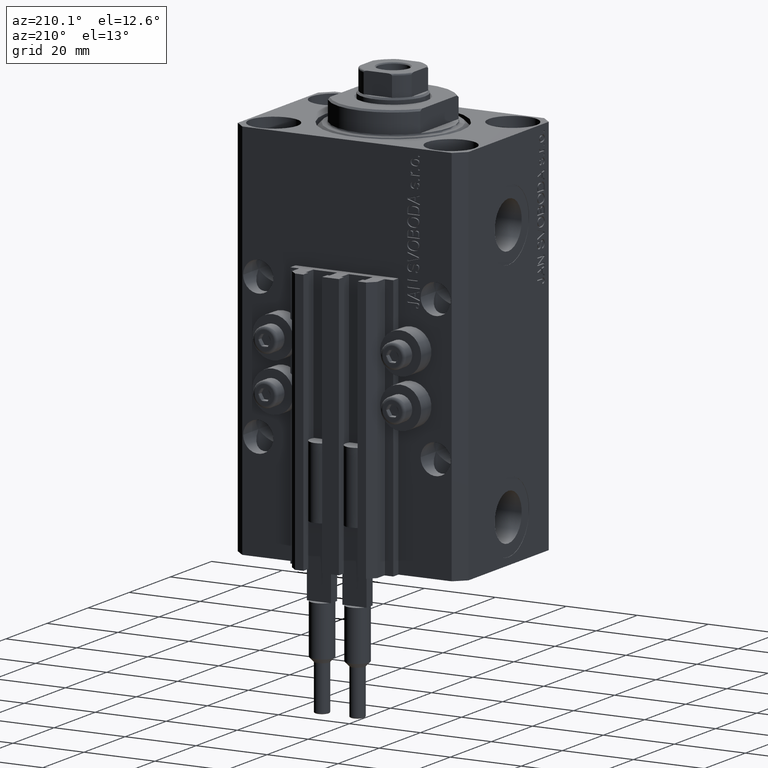
[diagram: clean part render]
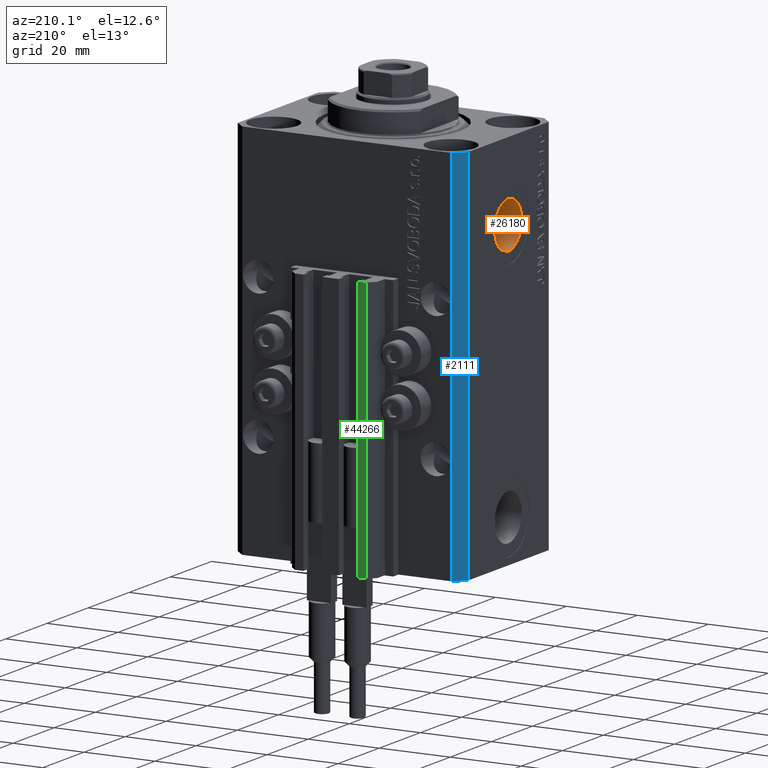
[diagram: same view with three faces highlighted in distinct colors, each labeled with its STEP entity id]
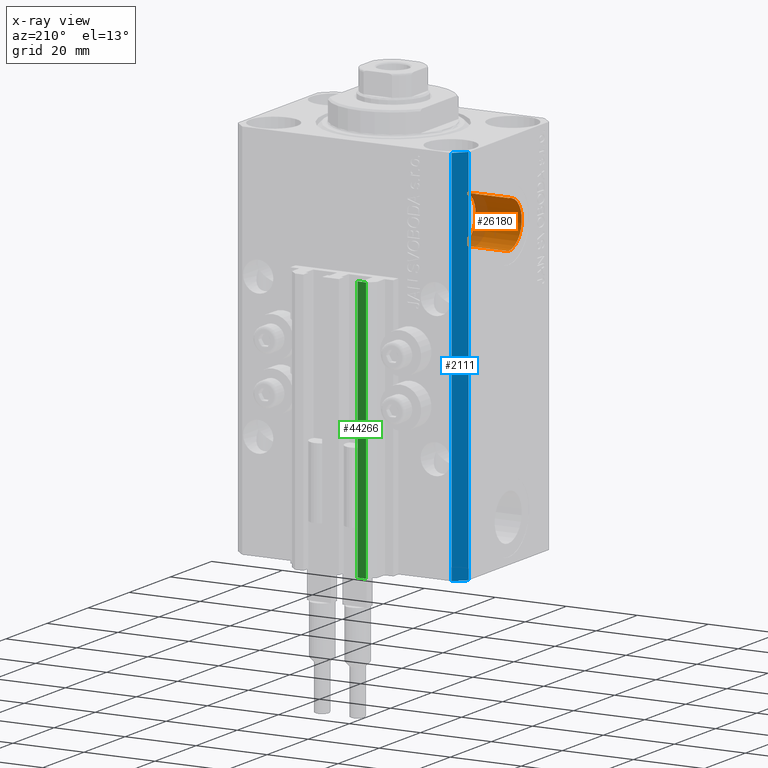
[diagram: x-ray of the same camera — body ghosted, the three highlighted faces saturated]
A machine part, auxiliary view with three faces highlighted in distinct colors.
The next image is the same camera in x-ray (body ghosted, the three faces saturated) — at least one of them is partly hidden behind the body in this view.
Their STEP definitions:

[orange] entity #26180 — the highlighted cylindrical surface (edge-blend (fillet) strip) has radius 6.58 mm, axis along (-1, -0, -0).
#1495 = EDGE_LOOP ( 'NONE', ( #39874, #26310, #27891, #34044 ) ) ;
#2220 = DIRECTION ( 'NONE',  ( 0.000000000000000000, 0.000000000000000000, 1.000000000000000000 ) ) ;
#7375 = DIRECTION ( 'NONE',  ( 0.000000000000000000, 0.000000000000000000, 1.000000000000000000 ) ) ;
#8674 = CARTESIAN_POINT ( 'NONE',  ( -19.39999999999650271, 0.000000000000000000, -15.41999999999999993 ) ) ;
#9579 = DIRECTION ( 'NONE',  ( -1.000000000000000000, -0.000000000000000000, -0.000000000000000000 ) ) ;
#10034 = VECTOR ( 'NONE', #42048, 1000.000000000000000 ) ;
#10871 = CIRCLE ( 'NONE', #39073, 6.579999999999999183 ) ;
#11341 = DIRECTION ( 'NONE',  ( -1.000000000000000000, 0.000000000000000000, 0.000000000000000000 ) ) ;
#12342 = LINE ( 'NONE', #8674, #10034 ) ;
#13233 = FACE_OUTER_BOUND ( 'NONE', #1495, .T. ) ;
#14479 = CARTESIAN_POINT ( 'NONE',  ( -32.39999999999650271, 0.000000000000000000, -22.00000000000000000 ) ) ;
#15487 = EDGE_CURVE ( 'NONE', #25530, #35539, #27233, .T. ) ;
#18104 = CARTESIAN_POINT ( 'NONE',  ( -19.39999999999650271, 0.000000000000000000, -15.41999999999999993 ) ) ;
#18406 = DIRECTION ( 'NONE',  ( -1.000000000000000000, 0.000000000000000000, 0.000000000000000000 ) ) ;
#18461 = CARTESIAN_POINT ( 'NONE',  ( -19.39999999999650271, 0.000000000000000000, -22.00000000000000000 ) ) ;
#19568 = VERTEX_POINT ( 'NONE', #21127 ) ;
#20245 = VECTOR ( 'NONE', #23144, 1000.000000000000000 ) ;
#21127 = CARTESIAN_POINT ( 'NONE',  ( -32.39999999999650271, 8.058175938389579572E-16, -28.57999999999999829 ) ) ;
#23144 = DIRECTION ( 'NONE',  ( -1.000000000000000000, -0.000000000000000000, -0.000000000000000000 ) ) ;
#24758 = CYLINDRICAL_SURFACE ( 'NONE', #30598, 6.579999999999999183 ) ;
#25530 = VERTEX_POINT ( 'NONE', #39141 ) ;
#26180 = ADVANCED_FACE ( 'NONE', ( #13233 ), #24758, .F. ) ;
#26310 = ORIENTED_EDGE ( 'NONE', *, *, #28493, .T. ) ;
#27233 = CIRCLE ( 'NONE', #41362, 6.579999999999999183 ) ;
#27891 = ORIENTED_EDGE ( 'NONE', *, *, #31287, .T. ) ;
#28493 = EDGE_CURVE ( 'NONE', #25530, #19568, #38374, .T. ) ;
#30598 = AXIS2_PLACEMENT_3D ( 'NONE', #43199, #9579, #2220 ) ;
#30744 = EDGE_CURVE ( 'NONE', #35539, #44135, #12342, .T. ) ;
#31287 = EDGE_CURVE ( 'NONE', #19568, #44135, #10871, .T. ) ;
#34044 = ORIENTED_EDGE ( 'NONE', *, *, #30744, .F. ) ;
#34714 = CARTESIAN_POINT ( 'NONE',  ( -32.39999999999650271, 0.000000000000000000, -15.41999999999999993 ) ) ;
#35539 = VERTEX_POINT ( 'NONE', #18104 ) ;
#38374 = LINE ( 'NONE', #39112, #20245 ) ;
#39073 = AXIS2_PLACEMENT_3D ( 'NONE', #14479, #18406, #7375 ) ;
#39112 = CARTESIAN_POINT ( 'NONE',  ( -19.39999999999650271, 8.058175938389580558E-16, -28.57999999999999829 ) ) ;
#39141 = CARTESIAN_POINT ( 'NONE',  ( -19.39999999999650271, 8.058175938389579572E-16, -28.57999999999999829 ) ) ;
#39874 = ORIENTED_EDGE ( 'NONE', *, *, #15487, .F. ) ;
#41362 = AXIS2_PLACEMENT_3D ( 'NONE', #18461, #11341, #44973 ) ;
#42048 = DIRECTION ( 'NONE',  ( -1.000000000000000000, -0.000000000000000000, -0.000000000000000000 ) ) ;
#43199 = CARTESIAN_POINT ( 'NONE',  ( -19.39999999999650271, 0.000000000000000000, -22.00000000000000000 ) ) ;
#44135 = VERTEX_POINT ( 'NONE', #34714 ) ;
#44973 = DIRECTION ( 'NONE',  ( 0.000000000000000000, 0.000000000000000000, 1.000000000000000000 ) ) ;

[blue] entity #2111 — the highlighted planar face has unit normal (-0.7071, 0.7071, 0).
#1824 = CARTESIAN_POINT ( 'NONE',  ( -29.49999999999650413, 22.49999999999949907, -107.0000000000000000 ) ) ;
#2111 = ADVANCED_FACE ( 'NONE', ( #40923 ), #7537, .T. ) ;
#3444 = AXIS2_PLACEMENT_3D ( 'NONE', #30087, #30561, #18336 ) ;
#4803 = ORIENTED_EDGE ( 'NONE', *, *, #9921, .F. ) ;
#4901 = ORIENTED_EDGE ( 'NONE', *, *, #12499, .T. ) ;
#6503 = LINE ( 'NONE', #14095, #40499 ) ;
#7537 = PLANE ( 'NONE',  #3444 ) ;
#9921 = EDGE_CURVE ( 'NONE', #42079, #21372, #6503, .T. ) ;
#9942 = DIRECTION ( 'NONE',  ( 0.000000000000000000, 0.000000000000000000, 1.000000000000000000 ) ) ;
#10018 = DIRECTION ( 'NONE',  ( -0.7071067811865474617, -0.7071067811865474617, 0.000000000000000000 ) ) ;
#10743 = DIRECTION ( 'NONE',  ( -0.7071067811865474617, -0.7071067811865474617, 0.000000000000000000 ) ) ;
#12499 = EDGE_CURVE ( 'NONE', #42079, #40804, #15365, .T. ) ;
#14095 = CARTESIAN_POINT ( 'NONE',  ( -29.49999999999650413, 22.49999999999949907, -107.0000000000000000 ) ) ;
#15365 = LINE ( 'NONE', #44376, #24001 ) ;
#17917 = VECTOR ( 'NONE', #26107, 1000.000000000000000 ) ;
#18336 = DIRECTION ( 'NONE',  ( -0.7071067811865474617, -0.7071067811865474617, 0.000000000000000000 ) ) ;
#21372 = VERTEX_POINT ( 'NONE', #31526 ) ;
#22258 = LINE ( 'NONE', #33550, #40904 ) ;
#23436 = CARTESIAN_POINT ( 'NONE',  ( -32.49999999999650413, 19.49999999999949907, -107.0000000000000000 ) ) ;
#24001 = VECTOR ( 'NONE', #10743, 1000.000000000000114 ) ;
#26107 = DIRECTION ( 'NONE',  ( 0.000000000000000000, 0.000000000000000000, 1.000000000000000000 ) ) ;
#27330 = EDGE_LOOP ( 'NONE', ( #34067, #4803, #4901, #30315 ) ) ;
#28302 = EDGE_CURVE ( 'NONE', #40804, #33409, #28338, .T. ) ;
#28338 = LINE ( 'NONE', #43344, #17917 ) ;
#30087 = CARTESIAN_POINT ( 'NONE',  ( -29.49999999999650413, 22.49999999999949907, -107.0000000000000000 ) ) ;
#30315 = ORIENTED_EDGE ( 'NONE', *, *, #28302, .T. ) ;
#30561 = DIRECTION ( 'NONE',  ( -0.7071067811865475727, 0.7071067811865475727, 0.000000000000000000 ) ) ;
#30892 = CARTESIAN_POINT ( 'NONE',  ( -32.49999999999650413, 19.49999999999949907, 0.000000000000000000 ) ) ;
#31526 = CARTESIAN_POINT ( 'NONE',  ( -29.49999999999650413, 22.49999999999949907, 0.000000000000000000 ) ) ;
#33409 = VERTEX_POINT ( 'NONE', #30892 ) ;
#33550 = CARTESIAN_POINT ( 'NONE',  ( -29.49999999999650413, 22.49999999999949907, 0.000000000000000000 ) ) ;
#34067 = ORIENTED_EDGE ( 'NONE', *, *, #39293, .F. ) ;
#39293 = EDGE_CURVE ( 'NONE', #21372, #33409, #22258, .T. ) ;
#40499 = VECTOR ( 'NONE', #9942, 1000.000000000000000 ) ;
#40804 = VERTEX_POINT ( 'NONE', #23436 ) ;
#40904 = VECTOR ( 'NONE', #10018, 1000.000000000000114 ) ;
#40923 = FACE_OUTER_BOUND ( 'NONE', #27330, .T. ) ;
#42079 = VERTEX_POINT ( 'NONE', #1824 ) ;
#43344 = CARTESIAN_POINT ( 'NONE',  ( -32.49999999999650413, 19.49999999999949907, -107.0000000000000000 ) ) ;
#44376 = CARTESIAN_POINT ( 'NONE',  ( -29.49999999999650413, 22.49999999999949907, -107.0000000000000000 ) ) ;

[green] entity #44266 — the highlighted planar face has unit normal (0, 1, 0).
#1566 = ORIENTED_EDGE ( 'NONE', *, *, #25781, .T. ) ;
#2090 = DIRECTION ( 'NONE',  ( 1.476360405086644852E-15, 1.000000000000000000, -0.000000000000000000 ) ) ;
#2336 = FACE_OUTER_BOUND ( 'NONE', #9740, .T. ) ;
#3840 = VERTEX_POINT ( 'NONE', #27185 ) ;
#4246 = LINE ( 'NONE', #8161, #12607 ) ;
#5684 = DIRECTION ( 'NONE',  ( 0.000000000000000000, 0.000000000000000000, 1.000000000000000000 ) ) ;
#6489 = PLANE ( 'NONE',  #21328 ) ;
#8094 = VECTOR ( 'NONE', #5684, 1000.000000000000000 ) ;
#8161 = CARTESIAN_POINT ( 'NONE',  ( -7.650000000000000355, 30.49999999999948486, -107.0000000000000000 ) ) ;
#9216 = ORIENTED_EDGE ( 'NONE', *, *, #13889, .F. ) ;
#9740 = EDGE_LOOP ( 'NONE', ( #9216, #38974, #1566, #25154 ) ) ;
#11915 = DIRECTION ( 'NONE',  ( -1.000000000000000000, 1.476360405086644852E-15, 0.000000000000000000 ) ) ;
#12607 = VECTOR ( 'NONE', #46210, 1000.000000000000000 ) ;
#12868 = DIRECTION ( 'NONE',  ( -1.000000000000000000, 1.476360405086644852E-15, 0.000000000000000000 ) ) ;
#13245 = CARTESIAN_POINT ( 'NONE',  ( -10.00000000000000000, 30.49999999999948841, -33.00000000000000000 ) ) ;
#13889 = EDGE_CURVE ( 'NONE', #3840, #45543, #30564, .T. ) ;
#14566 = CARTESIAN_POINT ( 'NONE',  ( -10.00000000000000000, 30.49999999999948841, -107.0000000000000000 ) ) ;
#14662 = LINE ( 'NONE', #41407, #47606 ) ;
#15007 = EDGE_CURVE ( 'NONE', #25669, #45543, #14662, .T. ) ;
#21328 = AXIS2_PLACEMENT_3D ( 'NONE', #28309, #2090, #12868 ) ;
#22287 = VERTEX_POINT ( 'NONE', #28570 ) ;
#22956 = CARTESIAN_POINT ( 'NONE',  ( -7.650000000000000355, 30.49999999999948486, -33.00000000000000000 ) ) ;
#24027 = VECTOR ( 'NONE', #11915, 1000.000000000000000 ) ;
#24310 = LINE ( 'NONE', #39309, #8094 ) ;
#25154 = ORIENTED_EDGE ( 'NONE', *, *, #15007, .T. ) ;
#25669 = VERTEX_POINT ( 'NONE', #14566 ) ;
#25781 = EDGE_CURVE ( 'NONE', #22287, #25669, #4246, .T. ) ;
#27185 = CARTESIAN_POINT ( 'NONE',  ( -7.650000000000000355, 30.49999999999948486, -33.00000000000000000 ) ) ;
#28309 = CARTESIAN_POINT ( 'NONE',  ( -7.650000000000000355, 30.49999999999948486, -107.0000000000000000 ) ) ;
#28570 = CARTESIAN_POINT ( 'NONE',  ( -7.650000000000000355, 30.49999999999948486, -107.0000000000000000 ) ) ;
#30564 = LINE ( 'NONE', #22956, #24027 ) ;
#38974 = ORIENTED_EDGE ( 'NONE', *, *, #42555, .F. ) ;
#39309 = CARTESIAN_POINT ( 'NONE',  ( -7.650000000000000355, 30.49999999999948486, -107.0000000000000000 ) ) ;
#41407 = CARTESIAN_POINT ( 'NONE',  ( -10.00000000000000000, 30.49999999999948841, -107.0000000000000000 ) ) ;
#42555 = EDGE_CURVE ( 'NONE', #22287, #3840, #24310, .T. ) ;
#44266 = ADVANCED_FACE ( 'NONE', ( #2336 ), #6489, .T. ) ;
#44620 = DIRECTION ( 'NONE',  ( 0.000000000000000000, 0.000000000000000000, 1.000000000000000000 ) ) ;
#45543 = VERTEX_POINT ( 'NONE', #13245 ) ;
#46210 = DIRECTION ( 'NONE',  ( -1.000000000000000000, 1.476360405086644852E-15, 0.000000000000000000 ) ) ;
#47606 = VECTOR ( 'NONE', #44620, 1000.000000000000000 ) ;